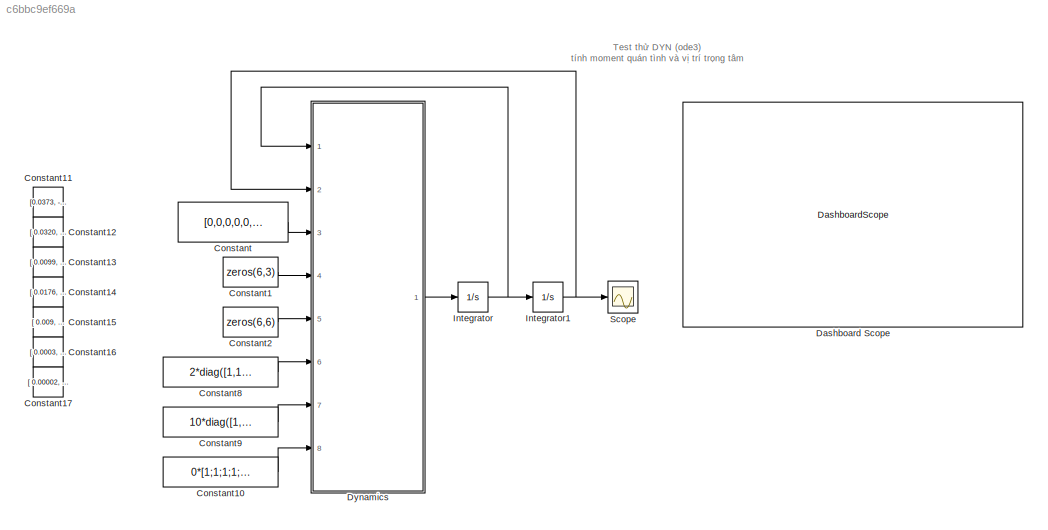
MODEL slx_c6bbc9ef669a
KIND model
CONFIG AbsTol = auto
CONFIG EnableMultiTasking = off
CONFIG FixedStep = 0.01
CONFIG MaxStep = auto
CONFIG MinStep = auto
CONFIG RelTol = 1e-3
CONFIG SampleTimeConstraint = Unconstrained
CONFIG Solver = FixedStepAuto
CONFIG SolverName = FixedStepAuto
CONFIG StartTime = 0.0
CONFIG StopTime = 100
BLOCK [Constant] Constant
  Value = [0,0,0,0,0,0]
BLOCK [Constant] Constant1
  Value = zeros(6,3)
BLOCK [Constant] Constant10
  Value = 0*[1;1;1;1;1;1]
BLOCK [Constant] Constant11
  Commented = on
  Value = [0.0373,  -0.0076,   0.1064;\n       0.1127,   0.0065,   0.0648;\n       0.0447,   0.0125,  -0.0554;\n       0.0006,   0.0052,   0.1068;\n            0,   0.0062,   0.0195;\n     -0.00001,  0.00001,  0.01126]
BLOCK [Constant] Constant12
  Commented = on
  Value = [ 0.0320,  -0.0017,   0.0093;\n      -0.0017,   0.0364,  -0.0018;\n       0.0093,  -0.0018,   0.0334]
BLOCK [Constant] Constant13
  Commented = on
  Value = [ 0.0099,   0.0008,  -0.0002;\n       0.0008,   0.0646,   0.0002;\n      -0.0002,   0.0002,   0.0684]
BLOCK [Constant] Constant14
  Commented = on
  Value = [ 0.0176,    0.001,   0.0007;\n        0.001,   0.0195,   0.0002;\n       0.0007,   0.0002,    0.024]
BLOCK [Constant] Constant15
  Commented = on
  Value = [  0.009,        0,        0;\n            0,   0.0081,   0.0002;\n            0,   0.0002,   0.0037]
BLOCK [Constant] Constant16
  Commented = on
  Value = [ 0.0003,        0,        0;\n            0,   0.0002,        0;\n            0,        0,   0.0003]
BLOCK [Constant] Constant17
  Commented = on
  Value = [ 0.00002,        0,        0;\n             0,  0.00002,        0;\n             0,        0,  0.00003]
BLOCK [Constant] Constant2
  Value = zeros(6,6)
BLOCK [Constant] Constant8
  Value = 2*diag([1,1,1,1,1,1])
BLOCK [Constant] Constant9
  Value = 10*diag([1,1,1,1,1,1])
BLOCK [DashboardScope] Dashboard Scope
  WebBlockId = 9
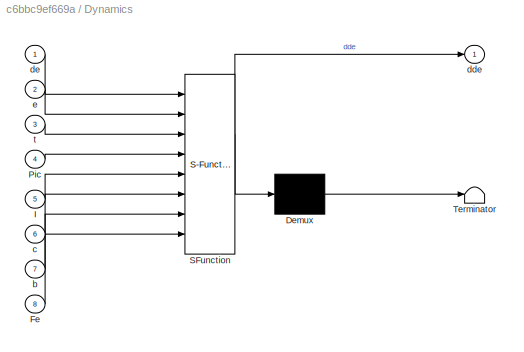
BLOCK [SubSystem] Dynamics
  ErrorFcn = Stateflow.Translate.translate
  PermitHierarchicalResolution = ExplicitOnly
  Ports = [8, 1]
  RequestExecContextInheritance = off
  SFBlockType = MATLAB Function
  TreatAsAtomicUnit = on
BLOCK [Demux] Dynamics/ Demux 
  DisplayOption = bar
  Outputs = 1
  Ports = [1, 1]
BLOCK [S-Function] Dynamics/ SFunction 
  EnableBusSupport = on
  FunctionName = sf_sfun
  PortCounts = [8 2]
  Ports = [8, 2]
  SFcnIsStateOwnerBlock = off
  SFunctionDeploymentMode = off
  Tag = Stateflow S-Function DYN_04 2
BLOCK [Terminator] Dynamics/ Terminator 
BLOCK [Inport] Dynamics/Fe
  IconDisplay = Port number
  Port = 8
BLOCK [Inport] Dynamics/I
  IconDisplay = Port number
  Port = 5
BLOCK [Inport] Dynamics/Pic
  IconDisplay = Port number
  Port = 4
BLOCK [Inport] Dynamics/b
  IconDisplay = Port number
  Port = 7
BLOCK [Inport] Dynamics/c
  IconDisplay = Port number
  Port = 6
BLOCK [Outport] Dynamics/dde
  IconDisplay = Port number
  VectorParamsAs1DForOutWhenUnconnected = on
BLOCK [Inport] Dynamics/de
  IconDisplay = Port number
BLOCK [Inport] Dynamics/e
  IconDisplay = Port number
  Port = 2
BLOCK [Inport] Dynamics/t
  IconDisplay = Port number
  Port = 3
BLOCK [Integrator] Integrator
  InitialCondition = [0;0;0;0;0;0]
  Ports = [1, 1]
BLOCK [Integrator] Integrator1
  InitialCondition = [0;0;0;0;0;0]
  Ports = [1, 1]
BLOCK [Scope] Scope
  Floating = off
  NumInputPorts = 1
  Ports = [1]
  ScopeSpecificationString = Simulink.scopes.TimeScopeBlockCfg('CurrentConfiguration', extmgr.ConfigurationSet(extmgr.Configuration('Core','General UI',true,'FigureColor',[1 1 1]),extmgr.Configuration('Core','Source UI',true),extmgr.Configuration('Sources','WiredSimulink',true,'DataLogging',true,'DataLoggingVariableName','d','DataLoggingSaveFormat','StructureWithTime'),extmgr.Configuration('Visuals','Time Domain',true,'Serial...<+2247ch>
ANNOTATION (root): Test thử DYN (ode3) tính moment quán tình và vị trí trọng tâm
LINE Constant10:1 -> Dynamics:8
LINE Constant1:1 -> Dynamics:4
LINE Constant2:1 -> Dynamics:5
LINE Constant8:1 -> Dynamics:6
LINE Constant9:1 -> Dynamics:7
LINE Constant:1 -> Dynamics:3
LINE Dynamics:1 -> Integrator:1
NET Integrator1:1 -> Dynamics:2, Scope:1
NET Integrator:1 -> Dynamics:1, Integrator1:1
note: NET lines group one-source signal fan-out (src -> all destinations, sorted); 1:1 wires keep LINE
CHART Dynamics states=1 transitions=1
  STATE_LABEL 'eML_blk_kernel()'
  STATE_LABEL 'SCRIPT:\nfunction dde = DYN(de,e,t,Pic,I,c,b,Fe)\ne1 = e(1); e2 = e(2); e3 = e(3);\ne4 = e(4); e5 = e(5); e6 = e(6);\nde1 = de(1); de2 = de(2); de3 = de(3);\nde4 = de(4); de5 = de(5); de6 = de(6);\nx1 = Pic(1,1); y1 = Pic(1,2); z1 = Pic(1,3);\nx2 = Pic(2,1); y2 = Pic(2,2); z2 = Pic(2,3);\nx3 = Pic(3,1); y3 = Pic(3,2); z3 = Pic(3,3);\nx4 = Pic(4,1); y4 = Pic(4,2); z4 = Pic(4,3);\nx5 = Pic(5,1); y5 = Pic(5,2)...<+3608ch>'
